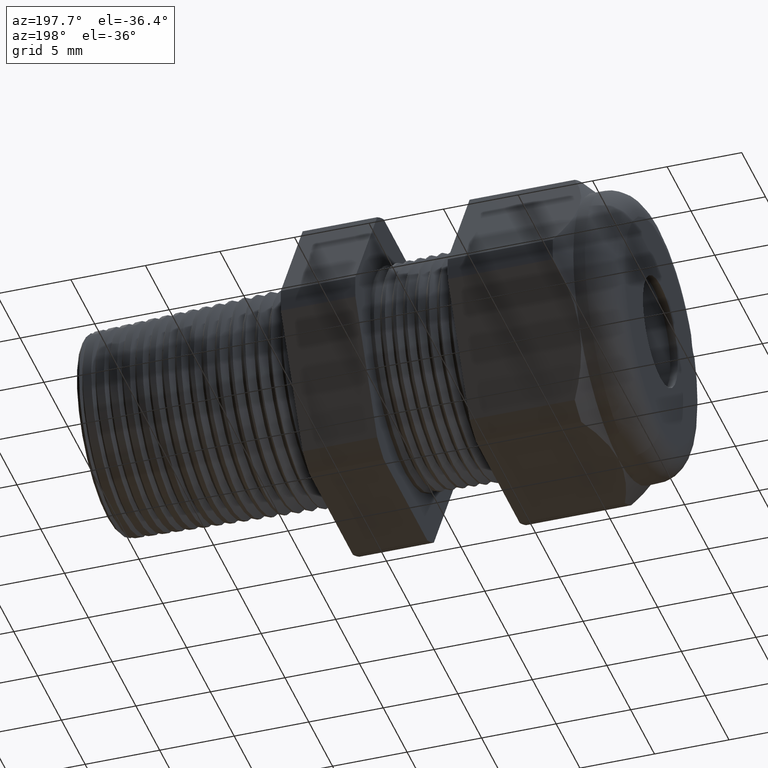
[diagram: clean part render]
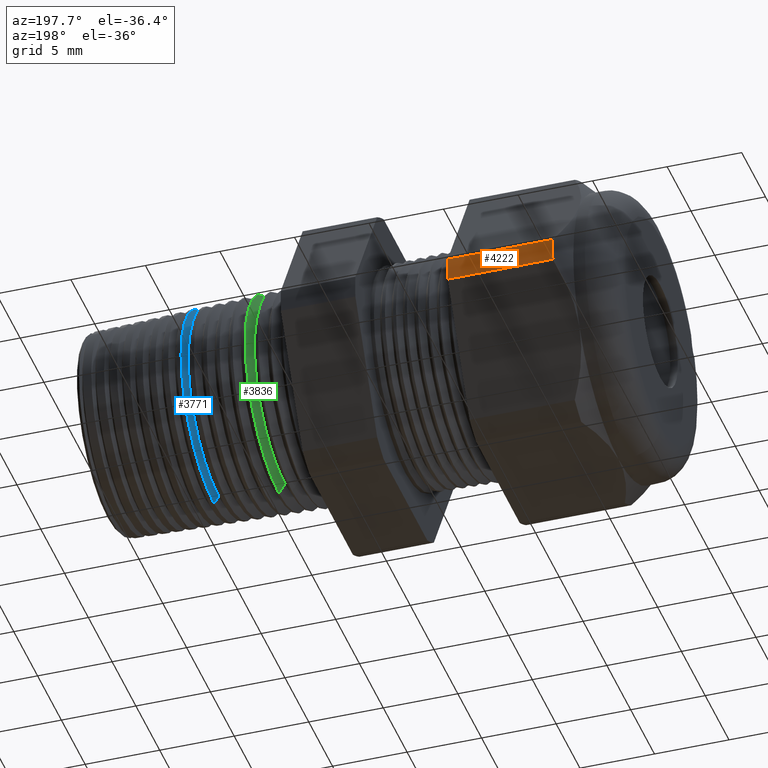
[diagram: same view with three faces highlighted in distinct colors, each labeled with its STEP entity id]
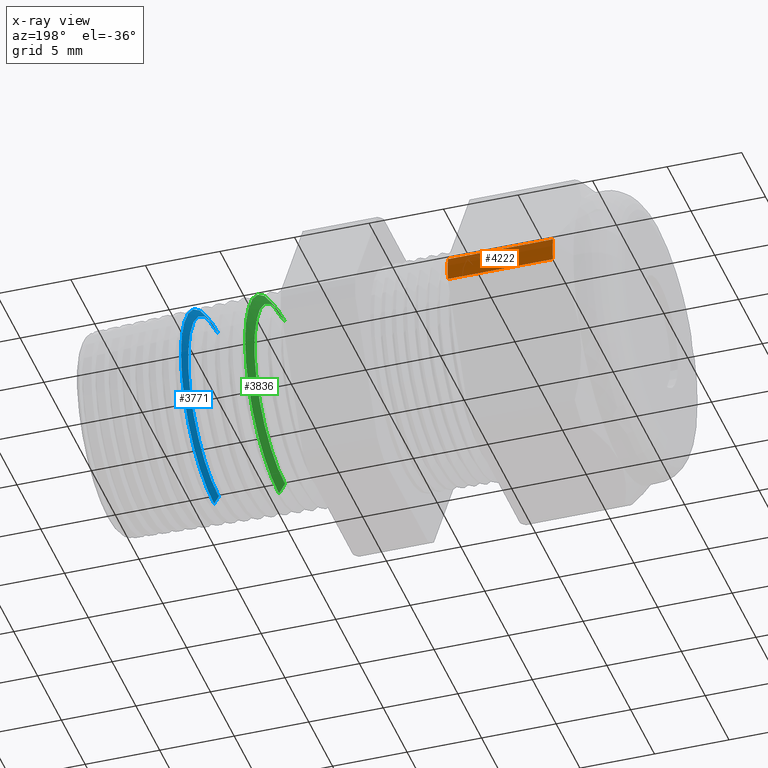
[diagram: x-ray of the same camera — body ghosted, the three highlighted faces saturated]
A machine part, auxiliary view with three faces highlighted in distinct colors.
The next image is the same camera in x-ray (body ghosted, the three faces saturated) — at least one of them is partly hidden behind the body in this view.
Their STEP definitions:

[orange] entity #4222 — the highlighted cylindrical surface (partial cylindrical patch) has radius 10.5727 mm, axis along (-1, 0, 0).
#1795 = CARTESIAN_POINT ( 'NONE',  ( -1.028513779527559200, 0.4150909474475088000, -0.03104138925901223100 ) ) ;
#1796 = CARTESIAN_POINT ( 'NONE',  ( -0.7508661417322833900, 0.4150909474475088000, -0.03104138925901223400 ) ) ;
#1797 = DIRECTION ( 'NONE',  ( -1.000000000000000000, 0.0000000000000000000, 0.0000000000000000000 ) ) ;
#1798 = VECTOR ( 'NONE', #1797, 39.37007874015748100 ) ;
#1799 = CARTESIAN_POINT ( 'NONE',  ( 0.2800000000000000300, 0.4150909474475088000, -0.03104138925901223100 ) ) ;
#1800 = LINE ( 'NONE', #1799, #1798 ) ;
#1801 = DIRECTION ( 'NONE',  ( 0.0000000000000000000, 0.0000000000000000000, 1.000000000000000000 ) ) ;
#1802 = DIRECTION ( 'NONE',  ( -1.000000000000000000, 0.0000000000000000000, 0.0000000000000000000 ) ) ;
#1803 = CARTESIAN_POINT ( 'NONE',  ( 0.2800000000000000300, 0.0000000000000000000, 0.0000000000000000000 ) ) ;
#1804 = AXIS2_PLACEMENT_3D ( 'NONE', #1803, #1802, #1801 ) ;
#1805 = CYLINDRICAL_SURFACE ( 'NONE', #1804, 0.4162500000000000100 ) ;
#1806 = FACE_OUTER_BOUND ( 'NONE', #4223, .T. ) ;
#1912 = DIRECTION ( 'NONE',  ( 0.0000000000000000000, 0.0000000000000000000, -1.000000000000000000 ) ) ;
#1913 = DIRECTION ( 'NONE',  ( 1.000000000000000000, 0.0000000000000000000, 0.0000000000000000000 ) ) ;
#1914 = CARTESIAN_POINT ( 'NONE',  ( -0.7508661417322833900, 0.0000000000000000000, 0.0000000000000000000 ) ) ;
#1915 = AXIS2_PLACEMENT_3D ( 'NONE', #1914, #1913, #1912 ) ;
#1916 = CIRCLE ( 'NONE', #1915, 0.4162500000000000100 ) ;
#1917 = CARTESIAN_POINT ( 'NONE',  ( -0.7508661417322833900, 0.4150909474475088000, 0.03104138925901233200 ) ) ;
#1918 = DIRECTION ( 'NONE',  ( -1.000000000000000000, 0.0000000000000000000, 0.0000000000000000000 ) ) ;
#1919 = VECTOR ( 'NONE', #1918, 39.37007874015748100 ) ;
#1920 = CARTESIAN_POINT ( 'NONE',  ( 0.2800000000000000300, 0.4150909474475088000, 0.03104138925901233200 ) ) ;
#1921 = LINE ( 'NONE', #1920, #1919 ) ;
#1922 = CARTESIAN_POINT ( 'NONE',  ( -1.028513779527559000, 0.4150909474475088000, 0.03104138925901235600 ) ) ;
#1923 = DIRECTION ( 'NONE',  ( 0.0000000000000000000, 0.0000000000000000000, -1.000000000000000000 ) ) ;
#1924 = DIRECTION ( 'NONE',  ( 1.000000000000000000, 0.0000000000000000000, 0.0000000000000000000 ) ) ;
#1925 = CARTESIAN_POINT ( 'NONE',  ( -1.028513779527559200, 0.0000000000000000000, 0.0000000000000000000 ) ) ;
#1926 = AXIS2_PLACEMENT_3D ( 'NONE', #1925, #1924, #1923 ) ;
#1927 = CIRCLE ( 'NONE', #1926, 0.4162500000000000100 ) ;
#4222 = ADVANCED_FACE ( 'NONE', ( #1806 ), #1805, .T. ) ;
#4223 = EDGE_LOOP ( 'NONE', ( #4224, #4281, #4284, #4287 ) ) ;
#4224 = ORIENTED_EDGE ( 'NONE', *, *, #4225, .T. ) ;
#4225 = EDGE_CURVE ( 'NONE', #4226, #4227, #1800, .T. ) ;
#4226 = VERTEX_POINT ( 'NONE', #1796 ) ;
#4227 = VERTEX_POINT ( 'NONE', #1795 ) ;
#4281 = ORIENTED_EDGE ( 'NONE', *, *, #4282, .T. ) ;
#4282 = EDGE_CURVE ( 'NONE', #4227, #4283, #1927, .T. ) ;
#4283 = VERTEX_POINT ( 'NONE', #1922 ) ;
#4284 = ORIENTED_EDGE ( 'NONE', *, *, #4285, .F. ) ;
#4285 = EDGE_CURVE ( 'NONE', #4286, #4283, #1921, .T. ) ;
#4286 = VERTEX_POINT ( 'NONE', #1917 ) ;
#4287 = ORIENTED_EDGE ( 'NONE', *, *, #4288, .F. ) ;
#4288 = EDGE_CURVE ( 'NONE', #4226, #4286, #1916, .T. ) ;

[blue] entity #3771 — the highlighted conical surface has half-angle 58 deg.
#909 = FACE_OUTER_BOUND ( 'NONE', #3772, .T. ) ;
#947 = CARTESIAN_POINT ( 'NONE',  ( -0.001359467828462092200, 0.0000000000000000000, 0.2738266502080835000 ) ) ;
#948 = CARTESIAN_POINT ( 'NONE',  ( -0.01373702801092103300, 0.0000000000000000000, 0.2540184132628080000 ) ) ;
#949 = CARTESIAN_POINT ( 'NONE',  ( -0.01373702801092103300, 3.237110271424058400E-017, -0.2540184132628080000 ) ) ;
#950 = DIRECTION ( 'NONE',  ( 0.0000000000000000000, 0.0000000000000000000, -1.000000000000000000 ) ) ;
#951 = DIRECTION ( 'NONE',  ( 1.000000000000000000, 0.0000000000000000000, 0.0000000000000000000 ) ) ;
#952 = CARTESIAN_POINT ( 'NONE',  ( -0.01373702801092103300, 0.0000000000000000000, 0.0000000000000000000 ) ) ;
#953 = AXIS2_PLACEMENT_3D ( 'NONE', #952, #951, #950 ) ;
#954 = CIRCLE ( 'NONE', #953, 0.2540184132628080000 ) ;
#966 = DIRECTION ( 'NONE',  ( 0.0000000000000000000, 0.0000000000000000000, -1.000000000000000000 ) ) ;
#967 = DIRECTION ( 'NONE',  ( 1.000000000000000000, 0.0000000000000000000, 0.0000000000000000000 ) ) ;
#968 = CARTESIAN_POINT ( 'NONE',  ( -0.01373702801092103300, 0.0000000000000000000, 0.0000000000000000000 ) ) ;
#969 = AXIS2_PLACEMENT_3D ( 'NONE', #968, #967, #966 ) ;
#970 = CONICAL_SURFACE ( 'NONE', #969, 0.2540184132628080000, 1.012290966156728100 ) ;
#1007 = DIRECTION ( 'NONE',  ( 0.5299192642331905800, 0.0000000000000000000, -0.8480480961564349500 ) ) ;
#1008 = VECTOR ( 'NONE', #1007, 39.37007874015748100 ) ;
#1009 = CARTESIAN_POINT ( 'NONE',  ( -0.01373702801092103300, 0.0000000000000000000, -0.2540184132628080000 ) ) ;
#1010 = LINE ( 'NONE', #1009, #1008 ) ;
#1011 = CARTESIAN_POINT ( 'NONE',  ( -0.001359467828462092200, 3.353409306985714000E-017, -0.2738266502080835000 ) ) ;
#1012 = DIRECTION ( 'NONE',  ( 0.0000000000000000000, 0.0000000000000000000, -1.000000000000000000 ) ) ;
#1013 = DIRECTION ( 'NONE',  ( -1.000000000000000000, 0.0000000000000000000, 0.0000000000000000000 ) ) ;
#1014 = CARTESIAN_POINT ( 'NONE',  ( -0.001359467828462092200, 0.0000000000000000000, 0.0000000000000000000 ) ) ;
#1015 = AXIS2_PLACEMENT_3D ( 'NONE', #1014, #1013, #1012 ) ;
#1016 = CIRCLE ( 'NONE', #1015, 0.2738266502080835000 ) ;
#1017 = DIRECTION ( 'NONE',  ( 0.5299192642331905800, 1.038559386480984900E-016, 0.8480480961564349500 ) ) ;
#1018 = VECTOR ( 'NONE', #1017, 39.37007874015748100 ) ;
#1019 = CARTESIAN_POINT ( 'NONE',  ( -0.01373702801092103300, 3.110828367267874100E-017, 0.2540184132628080000 ) ) ;
#1020 = LINE ( 'NONE', #1019, #1018 ) ;
#3771 = ADVANCED_FACE ( 'NONE', ( #909 ), #970, .T. ) ;
#3772 = EDGE_LOOP ( 'NONE', ( #3773, #3814, #3816, #3819 ) ) ;
#3773 = ORIENTED_EDGE ( 'NONE', *, *, #3783, .T. ) ;
#3783 = EDGE_CURVE ( 'NONE', #3784, #3785, #954, .T. ) ;
#3784 = VERTEX_POINT ( 'NONE', #949 ) ;
#3785 = VERTEX_POINT ( 'NONE', #948 ) ;
#3786 = VERTEX_POINT ( 'NONE', #947 ) ;
#3814 = ORIENTED_EDGE ( 'NONE', *, *, #3815, .T. ) ;
#3815 = EDGE_CURVE ( 'NONE', #3785, #3786, #1020, .T. ) ;
#3816 = ORIENTED_EDGE ( 'NONE', *, *, #3817, .T. ) ;
#3817 = EDGE_CURVE ( 'NONE', #3786, #3818, #1016, .T. ) ;
#3818 = VERTEX_POINT ( 'NONE', #1011 ) ;
#3819 = ORIENTED_EDGE ( 'NONE', *, *, #3820, .F. ) ;
#3820 = EDGE_CURVE ( 'NONE', #3784, #3818, #1010, .T. ) ;

[green] entity #3836 — the highlighted conical surface has half-angle 58 deg.
#1034 = CARTESIAN_POINT ( 'NONE',  ( -0.1887370280109210400, 0.0000000000000000000, 0.0000000000000000000 ) ) ;
#1085 = DIRECTION ( 'NONE',  ( 0.0000000000000000000, 0.0000000000000000000, -1.000000000000000000 ) ) ;
#1086 = DIRECTION ( 'NONE',  ( 1.000000000000000000, 0.0000000000000000000, 0.0000000000000000000 ) ) ;
#1087 = AXIS2_PLACEMENT_3D ( 'NONE', #1092, #1086, #1085 ) ;
#1088 = CIRCLE ( 'NONE', #1087, 0.2540184132628080000 ) ;
#1089 = DIRECTION ( 'NONE',  ( 0.0000000000000000000, 0.0000000000000000000, -1.000000000000000000 ) ) ;
#1090 = DIRECTION ( 'NONE',  ( 1.000000000000000000, 0.0000000000000000000, 0.0000000000000000000 ) ) ;
#1091 = AXIS2_PLACEMENT_3D ( 'NONE', #1034, #1090, #1089 ) ;
#1092 = CARTESIAN_POINT ( 'NONE',  ( -0.1887370280109210400, 0.0000000000000000000, 0.0000000000000000000 ) ) ;
#1093 = CONICAL_SURFACE ( 'NONE', #1091, 0.2540184132628080000, 1.012290966156728100 ) ;
#1094 = FACE_OUTER_BOUND ( 'NONE', #3967, .T. ) ;
#1319 = CARTESIAN_POINT ( 'NONE',  ( -0.1726223543229806500, 3.426650922669890800E-017, -0.2798072819898486700 ) ) ;
#1320 = DIRECTION ( 'NONE',  ( 0.5299192642331905800, 0.0000000000000000000, -0.8480480961564349500 ) ) ;
#1321 = VECTOR ( 'NONE', #1320, 39.37007874015748100 ) ;
#1322 = CARTESIAN_POINT ( 'NONE',  ( -0.1887370280109210400, 0.0000000000000000000, -0.2540184132628080000 ) ) ;
#1328 = LINE ( 'NONE', #1322, #1321 ) ;
#1363 = CARTESIAN_POINT ( 'NONE',  ( -0.1887370280109210400, 0.0000000000000000000, 0.2540184132628080000 ) ) ;
#1365 = CARTESIAN_POINT ( 'NONE',  ( -0.1887370280109210400, 3.275238125586184500E-017, -0.2540184132628080000 ) ) ;
#1485 = DIRECTION ( 'NONE',  ( 0.0000000000000000000, 0.0000000000000000000, -1.000000000000000000 ) ) ;
#1486 = DIRECTION ( 'NONE',  ( -1.000000000000000000, 0.0000000000000000000, 0.0000000000000000000 ) ) ;
#1487 = CARTESIAN_POINT ( 'NONE',  ( -0.1726223543229806500, 0.0000000000000000000, 0.0000000000000000000 ) ) ;
#1488 = AXIS2_PLACEMENT_3D ( 'NONE', #1487, #1486, #1485 ) ;
#1489 = CIRCLE ( 'NONE', #1488, 0.2798072819898487200 ) ;
#1495 = CARTESIAN_POINT ( 'NONE',  ( -0.1726223543229806500, 0.0000000000000000000, 0.2798072819898486700 ) ) ;
#1500 = DIRECTION ( 'NONE',  ( 0.5299192642331905800, 1.038559386480984900E-016, 0.8480480961564349500 ) ) ;
#1501 = VECTOR ( 'NONE', #1500, 39.37007874015748100 ) ;
#1502 = CARTESIAN_POINT ( 'NONE',  ( -0.1887370280109210400, 3.110828367267874100E-017, 0.2540184132628080000 ) ) ;
#1503 = LINE ( 'NONE', #1502, #1501 ) ;
#3836 = ADVANCED_FACE ( 'NONE', ( #1094 ), #1093, .T. ) ;
#3839 = ORIENTED_EDGE ( 'NONE', *, *, #3840, .T. ) ;
#3840 = EDGE_CURVE ( 'NONE', #3996, #3998, #1088, .T. ) ;
#3967 = EDGE_LOOP ( 'NONE', ( #3839, #4064, #3987, #3985 ) ) ;
#3985 = ORIENTED_EDGE ( 'NONE', *, *, #3986, .F. ) ;
#3986 = EDGE_CURVE ( 'NONE', #3996, #3989, #1328, .T. ) ;
#3987 = ORIENTED_EDGE ( 'NONE', *, *, #4066, .T. ) ;
#3989 = VERTEX_POINT ( 'NONE', #1319 ) ;
#3996 = VERTEX_POINT ( 'NONE', #1365 ) ;
#3998 = VERTEX_POINT ( 'NONE', #1363 ) ;
#4058 = EDGE_CURVE ( 'NONE', #3998, #4061, #1503, .T. ) ;
#4061 = VERTEX_POINT ( 'NONE', #1495 ) ;
#4064 = ORIENTED_EDGE ( 'NONE', *, *, #4058, .T. ) ;
#4066 = EDGE_CURVE ( 'NONE', #4061, #3989, #1489, .T. ) ;